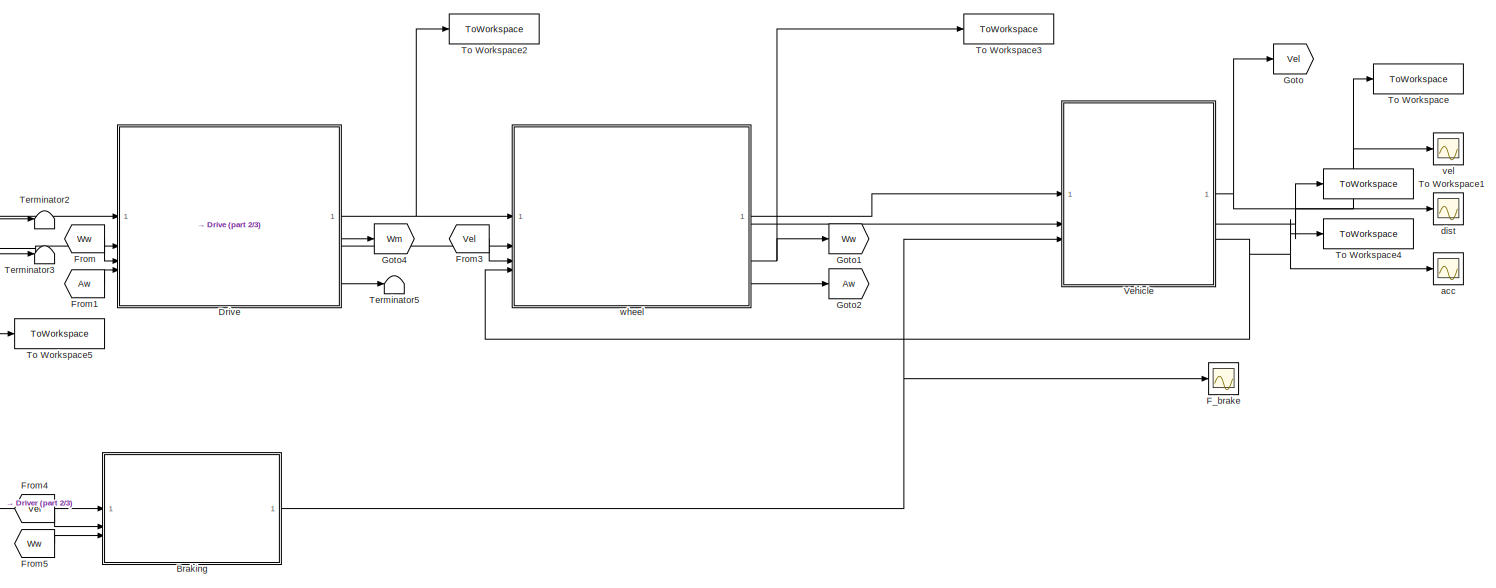
[diagram: root canvas - part 1/3, middle right region]
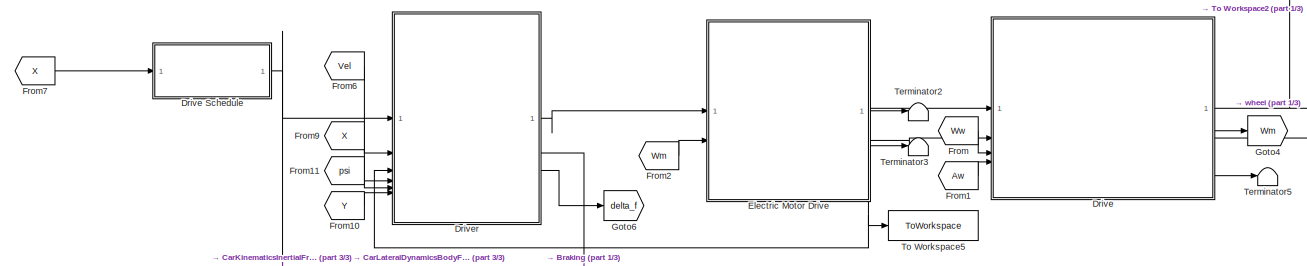
[diagram: root canvas - part 2/3, top left region]
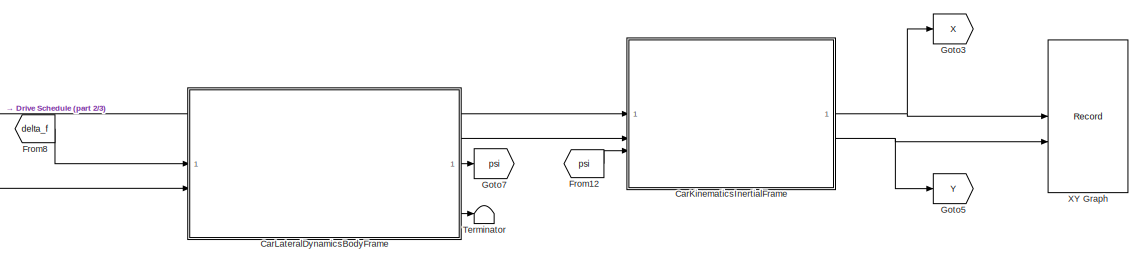
[diagram: root canvas - part 3/3, bottom center region]
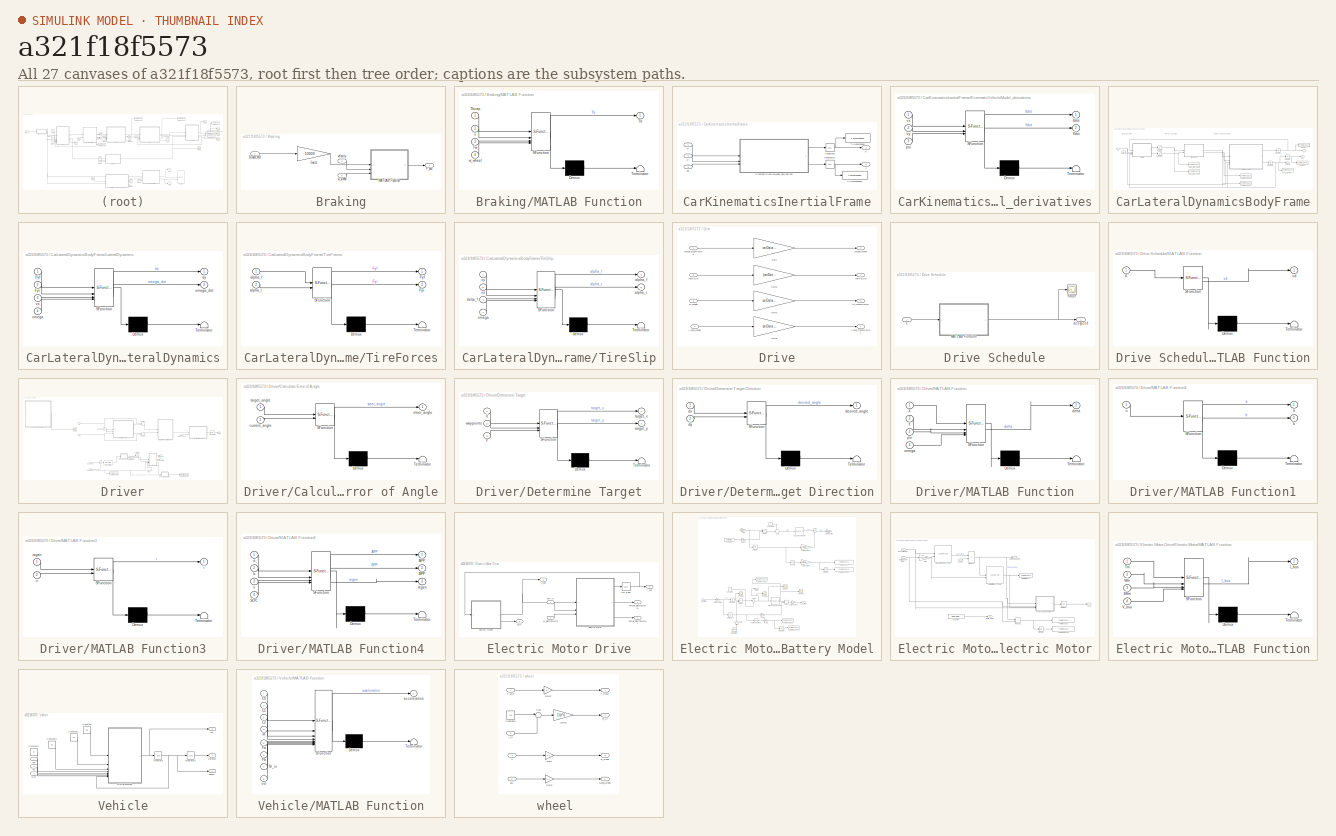
[diagram: thumbnail index - all 27 canvases of the model, root first then tree order]
MODEL slx_a321f18f5573
KIND model
CONFIG AbsTol = auto
CONFIG EnableMultiTasking = off
CONFIG FixedStep = auto
CONFIG MaxStep = auto
CONFIG MinStep = auto
CONFIG RelTol = 1e-3
CONFIG SampleTimeConstraint = Unconstrained
CONFIG SolverName = VariableStepAuto
CONFIG StartTime = 0.0
CONFIG StopTime = 10.0
BLOCK [SubSystem] Braking
BLOCK [Inport] Braking/BrakeCMD 
BLOCK [Outport] Braking/F_brk 
  VectorParamsAs1DForOutWhenUnconnected = off
BLOCK [Gain] Braking/Gain1
  Gain = 10000
BLOCK [SubSystem] Braking/MATLAB Function
  ErrorFcn = Stateflow.Translate.translate
  PermitHierarchicalResolution = ExplicitOnly
  SFBlockType = MATLAB Function
  TreatAsAtomicUnit = on
BLOCK [Demux] Braking/MATLAB Function/ Demux 
  Outputs = 1
BLOCK [S-Function] Braking/MATLAB Function/ SFunction 
  EnableBusSupport = on
  FunctionName = sf_sfun
  PortCounts = [4 2]
  SFcnIsStateOwnerBlock = off
  SFunctionDeploymentMode = off
  Tag = Stateflow S-Function 7
BLOCK [Terminator] Braking/MATLAB Function/ Terminator 
BLOCK [Outport] Braking/MATLAB Function/Tb
BLOCK [Inport] Braking/MATLAB Function/Tbcap
BLOCK [Inport] Braking/MATLAB Function/Tw
  Port = 3
BLOCK [Inport] Braking/MATLAB Function/v
  Port = 2
BLOCK [Inport] Braking/MATLAB Function/w_wheel
  Port = 4
BLOCK [Inport] Braking/velocity 
  Port = 2
BLOCK [Inport] Braking/w_wheel
  Port = 3
BLOCK [SubSystem] CarKinematicsInertialFrame
BLOCK [Integrator] CarKinematicsInertialFrame/Integrator
  InitialCondition = carData.init.X0
BLOCK [Integrator] CarKinematicsInertialFrame/Integrator1
  InitialCondition = carData.init.Y0
BLOCK [SubSystem] CarKinematicsInertialFrame/KinematicVehicleModel_derivatives
  ErrorFcn = Stateflow.Translate.translate
  PermitHierarchicalResolution = ExplicitOnly
  SFBlockType = MATLAB Function
  TreatAsAtomicUnit = on
BLOCK [Demux] CarKinematicsInertialFrame/KinematicVehicleModel_derivatives/ Demux 
  Outputs = 1
BLOCK [S-Function] CarKinematicsInertialFrame/KinematicVehicleModel_derivatives/ SFunction 
  EnableBusSupport = on
  FunctionName = sf_sfun
  PortCounts = [3 3]
  SFcnIsStateOwnerBlock = off
  SFunctionDeploymentMode = off
  Tag = Stateflow S-Function 3
BLOCK [Terminator] CarKinematicsInertialFrame/KinematicVehicleModel_derivatives/ Terminator 
BLOCK [Outport] CarKinematicsInertialFrame/KinematicVehicleModel_derivatives/Xdot
BLOCK [Outport] CarKinematicsInertialFrame/KinematicVehicleModel_derivatives/Ydot
  Port = 2
BLOCK [Inport] CarKinematicsInertialFrame/KinematicVehicleModel_derivatives/psi
  Port = 3
BLOCK [Inport] CarKinematicsInertialFrame/KinematicVehicleModel_derivatives/vx
BLOCK [Inport] CarKinematicsInertialFrame/KinematicVehicleModel_derivatives/vy
  Port = 2
BLOCK [ToWorkspace] CarKinematicsInertialFrame/To Workspace
  FixptAsFi = on
  MaxDataPoints = inf
  SampleTime = -1
  SaveFormat = Timeseries
  VariableName = X
BLOCK [ToWorkspace] CarKinematicsInertialFrame/To Workspace1
  FixptAsFi = on
  MaxDataPoints = inf
  SampleTime = -1
  SaveFormat = Timeseries
  VariableName = Y
BLOCK [Outport] CarKinematicsInertialFrame/X
BLOCK [Outport] CarKinematicsInertialFrame/Y
  Port = 2
BLOCK [Inport] CarKinematicsInertialFrame/psi
  Port = 3
BLOCK [Inport] CarKinematicsInertialFrame/vx
BLOCK [Inport] CarKinematicsInertialFrame/vy
  Port = 2
BLOCK [SubSystem] CarLateralDynamicsBodyFrame
BLOCK [ToWorkspace] CarLateralDynamicsBodyFrame/Front_Slip_Angle
  FixptAsFi = on
  MaxDataPoints = inf
  SampleTime = -1
  SaveFormat = Timeseries
  VariableName = alpha_f
BLOCK [ToWorkspace] CarLateralDynamicsBodyFrame/Heading
  FixptAsFi = on
  MaxDataPoints = inf
  SampleTime = -1
  SaveFormat = Timeseries
  VariableName = psi
BLOCK [Integrator] CarLateralDynamicsBodyFrame/Integrator
  InitialCondition = carData.init.vy0
BLOCK [Integrator] CarLateralDynamicsBodyFrame/Integrator1
  InitialCondition = carData.init.omega0
BLOCK [Integrator] CarLateralDynamicsBodyFrame/Integrator2
  InitialCondition = carData.init.psi0
BLOCK [SubSystem] CarLateralDynamicsBodyFrame/LateralDynamics
  ErrorFcn = Stateflow.Translate.translate
  PermitHierarchicalResolution = ExplicitOnly
  SFBlockType = MATLAB Function
  TreatAsAtomicUnit = on
BLOCK [Demux] CarLateralDynamicsBodyFrame/LateralDynamics/ Demux 
  Outputs = 1
BLOCK [S-Function] CarLateralDynamicsBodyFrame/LateralDynamics/ SFunction 
  EnableBusSupport = on
  FunctionName = sf_sfun
  Parameters = obj
  PortCounts = [4 3]
  SFcnIsStateOwnerBlock = off
  SFunctionDeploymentMode = off
  Tag = Stateflow S-Function 5
BLOCK [Terminator] CarLateralDynamicsBodyFrame/LateralDynamics/ Terminator 
BLOCK [Inport] CarLateralDynamicsBodyFrame/LateralDynamics/Fyf
BLOCK [Inport] CarLateralDynamicsBodyFrame/LateralDynamics/Fyr
  Port = 2
BLOCK [Outport] CarLateralDynamicsBodyFrame/LateralDynamics/ay
BLOCK [Inport] CarLateralDynamicsBodyFrame/LateralDynamics/omega
  Port = 4
BLOCK [Outport] CarLateralDynamicsBodyFrame/LateralDynamics/omega_dot
  Port = 2
BLOCK [Inport] CarLateralDynamicsBodyFrame/LateralDynamics/vx
  Port = 3
BLOCK [ToWorkspace] CarLateralDynamicsBodyFrame/Rear_Slip_Angle
  FixptAsFi = on
  MaxDataPoints = inf
  SampleTime = -1
  SaveFormat = Timeseries
  VariableName = alpha_r
BLOCK [Saturate] CarLateralDynamicsBodyFrame/Saturation
  LowerLimit = -carData.maxAlpha
  UpperLimit = carData.maxAlpha
BLOCK [Saturate] CarLateralDynamicsBodyFrame/Saturation1
  LowerLimit = -carData.maxAlpha
  UpperLimit = carData.maxAlpha
BLOCK [SubSystem] CarLateralDynamicsBodyFrame/TireForces
  ErrorFcn = Stateflow.Translate.translate
  PermitHierarchicalResolution = ExplicitOnly
  SFBlockType = MATLAB Function
  TreatAsAtomicUnit = on
BLOCK [Demux] CarLateralDynamicsBodyFrame/TireForces/ Demux 
  Outputs = 1
BLOCK [S-Function] CarLateralDynamicsBodyFrame/TireForces/ SFunction 
  EnableBusSupport = on
  FunctionName = sf_sfun
  Parameters = obj
  PortCounts = [2 3]
  SFcnIsStateOwnerBlock = off
  SFunctionDeploymentMode = off
  Tag = Stateflow S-Function 6
BLOCK [Terminator] CarLateralDynamicsBodyFrame/TireForces/ Terminator 
BLOCK [Outport] CarLateralDynamicsBodyFrame/TireForces/Fyf
BLOCK [Outport] CarLateralDynamicsBodyFrame/TireForces/Fyr
  Port = 2
BLOCK [Inport] CarLateralDynamicsBodyFrame/TireForces/alpha_f
BLOCK [Inport] CarLateralDynamicsBodyFrame/TireForces/alpha_r
  Port = 2
BLOCK [SubSystem] CarLateralDynamicsBodyFrame/TireSlip
  ErrorFcn = Stateflow.Translate.translate
  PermitHierarchicalResolution = ExplicitOnly
  SFBlockType = MATLAB Function
  TreatAsAtomicUnit = on
BLOCK [Demux] CarLateralDynamicsBodyFrame/TireSlip/ Demux 
  Outputs = 1
BLOCK [S-Function] CarLateralDynamicsBodyFrame/TireSlip/ SFunction 
  EnableBusSupport = on
  FunctionName = sf_sfun
  Parameters = obj
  PortCounts = [4 3]
  SFcnIsStateOwnerBlock = off
  SFunctionDeploymentMode = off
  Tag = Stateflow S-Function 8
BLOCK [Terminator] CarLateralDynamicsBodyFrame/TireSlip/ Terminator 
BLOCK [Outport] CarLateralDynamicsBodyFrame/TireSlip/alpha_f
BLOCK [Outport] CarLateralDynamicsBodyFrame/TireSlip/alpha_r
  Port = 2
BLOCK [Inport] CarLateralDynamicsBodyFrame/TireSlip/delta_f
  Port = 3
BLOCK [Inport] CarLateralDynamicsBodyFrame/TireSlip/omega
  Port = 4
BLOCK [Inport] CarLateralDynamicsBodyFrame/TireSlip/vx
  Port = 2
BLOCK [Inport] CarLateralDynamicsBodyFrame/TireSlip/vy
BLOCK [ToWorkspace] CarLateralDynamicsBodyFrame/To Workspace5
  FixptAsFi = on
  MaxDataPoints = inf
  SampleTime = -1
  SaveFormat = Timeseries
  VariableName = Fyf
BLOCK [ToWorkspace] CarLateralDynamicsBodyFrame/To Workspace6
  FixptAsFi = on
  MaxDataPoints = inf
  SampleTime = -1
  SaveFormat = Timeseries
  VariableName = Fyr
BLOCK [ToWorkspace] CarLateralDynamicsBodyFrame/Velocity_Y
  FixptAsFi = on
  MaxDataPoints = inf
  SampleTime = -1
  SaveFormat = Timeseries
  VariableName = vy
BLOCK [ToWorkspace] CarLateralDynamicsBodyFrame/Yaw Rate
  FixptAsFi = on
  MaxDataPoints = inf
  SampleTime = -1
  SaveFormat = Timeseries
  VariableName = omega
BLOCK [Inport] CarLateralDynamicsBodyFrame/delta_f
BLOCK [Outport] CarLateralDynamicsBodyFrame/omega
  Port = 3
BLOCK [Outport] CarLateralDynamicsBodyFrame/psi
  Port = 2
BLOCK [Inport] CarLateralDynamicsBodyFrame/vx
  Port = 2
BLOCK [Outport] CarLateralDynamicsBodyFrame/vy
BLOCK [SubSystem] Drive
BLOCK [SubSystem] Drive Schedule
BLOCK [SubSystem] Drive Schedule/MATLAB Function
  ErrorFcn = Stateflow.Translate.translate
  PermitHierarchicalResolution = ExplicitOnly
  SFBlockType = MATLAB Function
  TreatAsAtomicUnit = on
BLOCK [Demux] Drive Schedule/MATLAB Function/ Demux 
  Outputs = 1
BLOCK [S-Function] Drive Schedule/MATLAB Function/ SFunction 
  EnableBusSupport = on
  FunctionName = sf_sfun
  PortCounts = [1 2]
  SFcnIsStateOwnerBlock = off
  SFunctionDeploymentMode = off
  Tag = Stateflow S-Function 1
BLOCK [Terminator] Drive Schedule/MATLAB Function/ Terminator 
BLOCK [Inport] Drive Schedule/MATLAB Function/X
BLOCK [Outport] Drive Schedule/MATLAB Function/vd
BLOCK [Scope] Drive Schedule/Scope
  Floating = off
  NumInputPorts = 1
  ScopeSpecificationString = Simulink.scopes.TimeScopeBlockCfg('CurrentConfiguration', extmgr.ConfigurationSet(extmgr.Configuration('Core','General UI',true),extmgr.Configuration('Core','Source UI',true),extmgr.Configuration('Sources','WiredSimulink',true,'DataLoggingVariableName','ScopeData4'),extmgr.Configuration('Visuals','Time Domain',true,'SerializedDisplays',{struct('MinYLimReal','-3.1684','MaxYLimReal','28.51556','YLab...<+1407ch>
BLOCK [Outport] Drive Schedule/des speed 
  VectorParamsAs1DForOutWhenUnconnected = off
BLOCK [Inport] Drive Schedule/x
BLOCK [Outport] Drive/Alpha_Transmission
  Port = 4
BLOCK [Inport] Drive/Alpha_Wheel
  Port = 4
BLOCK [Gain] Drive/Gain
  Gain = carData.FDG
BLOCK [Gain] Drive/Gain1
  Gain = (carData.FDG)^2
BLOCK [Gain] Drive/Gain2
  Gain = carData.FDG
BLOCK [Gain] Drive/Gain3
  Gain = carData.FDG
BLOCK [Inport] Drive/Inertia_In
  Port = 2
BLOCK [Outport] Drive/Inertia_Out
  Port = 2
BLOCK [Inport] Drive/Torque_Tranmission
BLOCK [Outport] Drive/Torque_Wheel
BLOCK [Outport] Drive/W_Transmission
  Port = 3
BLOCK [Inport] Drive/W_Wheel
  Port = 3
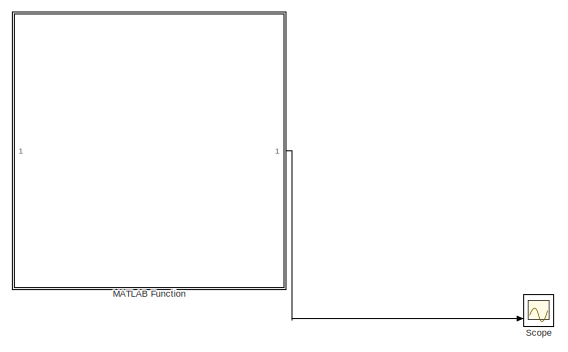
[diagram: Driver - part 1/2, top left region]
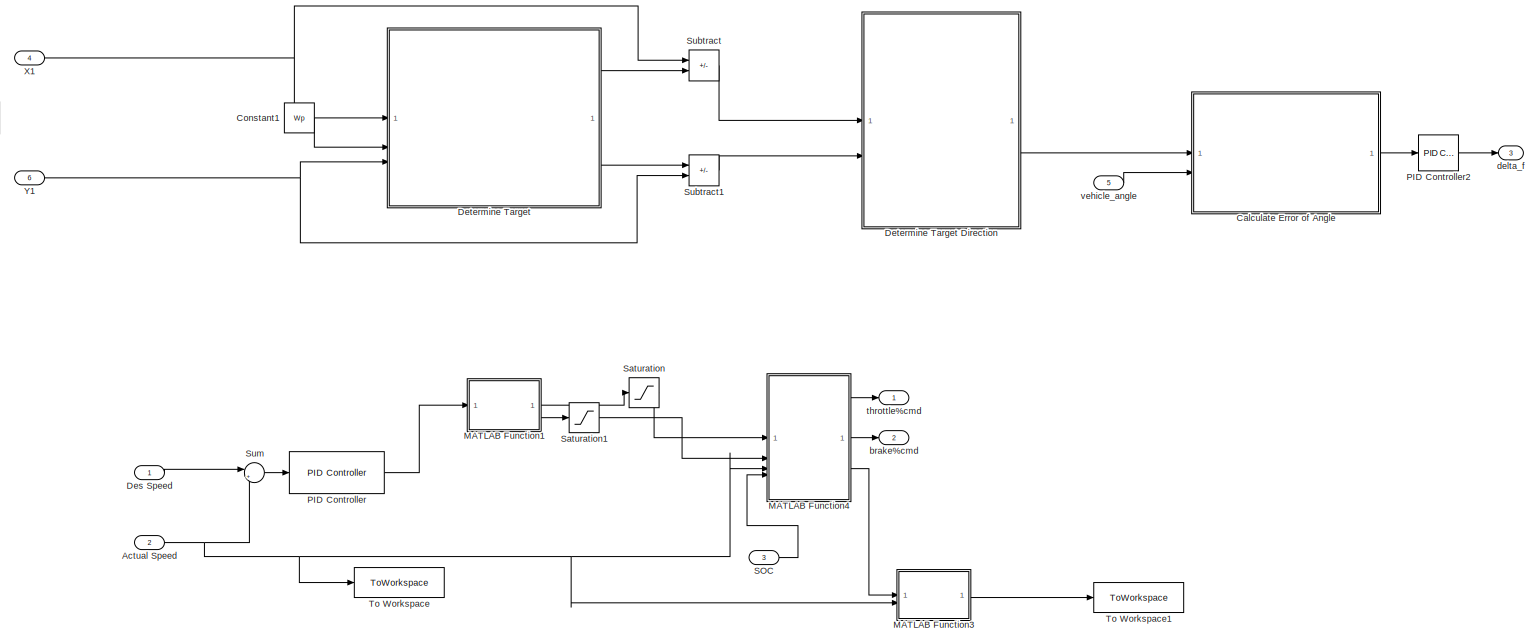
[diagram: Driver - part 2/2, most of the canvas]
BLOCK [SubSystem] Driver
BLOCK [Inport] Driver/Actual Speed
  Port = 2
BLOCK [SubSystem] Driver/Calculate Error of Angle
  ErrorFcn = Stateflow.Translate.translate
  PermitHierarchicalResolution = ExplicitOnly
  SFBlockType = MATLAB Function
  TreatAsAtomicUnit = on
BLOCK [Demux] Driver/Calculate Error of Angle/ Demux 
  Outputs = 1
BLOCK [S-Function] Driver/Calculate Error of Angle/ SFunction 
  EnableBusSupport = on
  FunctionName = sf_sfun
  PortCounts = [2 2]
  SFcnIsStateOwnerBlock = off
  SFunctionDeploymentMode = off
  Tag = Stateflow S-Function 12
BLOCK [Terminator] Driver/Calculate Error of Angle/ Terminator 
BLOCK [Inport] Driver/Calculate Error of Angle/current_angle
  Port = 2
BLOCK [Outport] Driver/Calculate Error of Angle/steer_angle
BLOCK [Inport] Driver/Calculate Error of Angle/target_angle
BLOCK [Constant] Driver/Constant1
  Value = Wp
BLOCK [Inport] Driver/Des Speed 
BLOCK [SubSystem] Driver/Determine Target
  ErrorFcn = Stateflow.Translate.translate
  PermitHierarchicalResolution = ExplicitOnly
  SFBlockType = MATLAB Function
  TreatAsAtomicUnit = on
BLOCK [SubSystem] Driver/Determine Target Direction
  ErrorFcn = Stateflow.Translate.translate
  PermitHierarchicalResolution = ExplicitOnly
  SFBlockType = MATLAB Function
  TreatAsAtomicUnit = on
BLOCK [Demux] Driver/Determine Target Direction/ Demux 
  Outputs = 1
BLOCK [S-Function] Driver/Determine Target Direction/ SFunction 
  EnableBusSupport = on
  FunctionName = sf_sfun
  PortCounts = [2 2]
  SFcnIsStateOwnerBlock = off
  SFunctionDeploymentMode = off
  Tag = Stateflow S-Function 20
BLOCK [Terminator] Driver/Determine Target Direction/ Terminator 
BLOCK [Outport] Driver/Determine Target Direction/desired_angle
BLOCK [Inport] Driver/Determine Target Direction/dx
BLOCK [Inport] Driver/Determine Target Direction/dy
  Port = 2
BLOCK [Demux] Driver/Determine Target/ Demux 
  Outputs = 1
BLOCK [S-Function] Driver/Determine Target/ SFunction 
  EnableBusSupport = on
  FunctionName = sf_sfun
  PortCounts = [3 3]
  SFcnIsStateOwnerBlock = off
  SFunctionDeploymentMode = off
  Tag = Stateflow S-Function 19
BLOCK [Terminator] Driver/Determine Target/ Terminator 
BLOCK [Inport] Driver/Determine Target/X
BLOCK [Inport] Driver/Determine Target/Y
  Port = 3
BLOCK [Outport] Driver/Determine Target/target_x
BLOCK [Outport] Driver/Determine Target/target_y
  Port = 2
BLOCK [Inport] Driver/Determine Target/waypoints
  Port = 2
BLOCK [SubSystem] Driver/MATLAB Function
  Commented = on
  ErrorFcn = Stateflow.Translate.translate
  PermitHierarchicalResolution = ExplicitOnly
  SFBlockType = MATLAB Function
  TreatAsAtomicUnit = on
BLOCK [Demux] Driver/MATLAB Function/ Demux 
  Outputs = 1
BLOCK [S-Function] Driver/MATLAB Function/ SFunction 
  EnableBusSupport = on
  FunctionName = sf_sfun
  PortCounts = [4 2]
  SFcnIsStateOwnerBlock = off
  SFunctionDeploymentMode = off
  Tag = Stateflow S-Function 10
BLOCK [Terminator] Driver/MATLAB Function/ Terminator 
BLOCK [Inport] Driver/MATLAB Function/X
BLOCK [Inport] Driver/MATLAB Function/Y
  Port = 2
BLOCK [Outport] Driver/MATLAB Function/delta
BLOCK [Inport] Driver/MATLAB Function/omega
  Port = 4
BLOCK [Inport] Driver/MATLAB Function/psi
  Port = 3
BLOCK [SubSystem] Driver/MATLAB Function1
  ErrorFcn = Stateflow.Translate.translate
  PermitHierarchicalResolution = ExplicitOnly
  SFBlockType = MATLAB Function
  TreatAsAtomicUnit = on
BLOCK [Demux] Driver/MATLAB Function1/ Demux 
  Outputs = 1
BLOCK [S-Function] Driver/MATLAB Function1/ SFunction 
  EnableBusSupport = on
  FunctionName = sf_sfun
  PortCounts = [1 3]
  SFcnIsStateOwnerBlock = off
  SFunctionDeploymentMode = off
  Tag = Stateflow S-Function 11
BLOCK [Terminator] Driver/MATLAB Function1/ Terminator 
BLOCK [Outport] Driver/MATLAB Function1/a
BLOCK [Outport] Driver/MATLAB Function1/b
  Port = 2
BLOCK [Inport] Driver/MATLAB Function1/u
BLOCK [SubSystem] Driver/MATLAB Function3
  ErrorFcn = Stateflow.Translate.translate
  PermitHierarchicalResolution = ExplicitOnly
  SFBlockType = MATLAB Function
  TreatAsAtomicUnit = on
BLOCK [Demux] Driver/MATLAB Function3/ Demux 
  Outputs = 1
BLOCK [S-Function] Driver/MATLAB Function3/ SFunction 
  EnableBusSupport = on
  FunctionName = sf_sfun
  PortCounts = [2 2]
  SFcnIsStateOwnerBlock = off
  SFunctionDeploymentMode = off
  Tag = Stateflow S-Function 13
BLOCK [Terminator] Driver/MATLAB Function3/ Terminator 
BLOCK [Outport] Driver/MATLAB Function3/i
BLOCK [Inport] Driver/MATLAB Function3/regen
BLOCK [Inport] Driver/MATLAB Function3/v
  Port = 2
BLOCK [SubSystem] Driver/MATLAB Function4
  ErrorFcn = Stateflow.Translate.translate
  PermitHierarchicalResolution = ExplicitOnly
  SFBlockType = MATLAB Function
  TreatAsAtomicUnit = on
BLOCK [Demux] Driver/MATLAB Function4/ Demux 
  Outputs = 1
BLOCK [S-Function] Driver/MATLAB Function4/ SFunction 
  EnableBusSupport = on
  FunctionName = sf_sfun
  PortCounts = [4 4]
  SFcnIsStateOwnerBlock = off
  SFunctionDeploymentMode = off
  Tag = Stateflow S-Function 14
BLOCK [Terminator] Driver/MATLAB Function4/ Terminator 
BLOCK [Outport] Driver/MATLAB Function4/APP
BLOCK [Outport] Driver/MATLAB Function4/BPP
  Port = 2
BLOCK [Inport] Driver/MATLAB Function4/SOC
  Port = 4
BLOCK [Inport] Driver/MATLAB Function4/a
BLOCK [Inport] Driver/MATLAB Function4/b
  Port = 2
BLOCK [Outport] Driver/MATLAB Function4/regen
  Port = 3
BLOCK [Inport] Driver/MATLAB Function4/v
  Port = 3
BLOCK [Reference] Driver/PID Controller  REF=slpidlib/PID Controller
  SourceBlock = slpidlib/PID Controller
  SourceType = PID 1dof
BLOCK [Reference] Driver/PID Controller2  REF=slpidlib/PID Controller
  LibrarySourceBlock = simulink/Continuous/PID Controller
  SourceBlock = slpidlib/PID Controller
  SourceType = PID 1dof
BLOCK [Inport] Driver/SOC
  Port = 3
BLOCK [Saturate] Driver/Saturation
  LowerLimit = 0
  UpperLimit = 1
BLOCK [Saturate] Driver/Saturation1
  LowerLimit = -1
  UpperLimit = 0
BLOCK [Scope] Driver/Scope
  Commented = on
  Floating = off
  NumInputPorts = 3
  ScopeSpecificationString = Simulink.scopes.TimeScopeBlockCfg('CurrentConfiguration', extmgr.ConfigurationSet(extmgr.Configuration('Core','General UI',true),extmgr.Configuration('Core','Source UI',true),extmgr.Configuration('Sources','WiredSimulink',true),extmgr.Configuration('Visuals','Time Domain',true,'SerializedDisplays',{struct('MinYLimReal','-239.44458','MaxYLimReal','1139.16885','YLabelReal','','MinYLimMag',' 0.00000'...<+2726ch>
BLOCK [Sum] Driver/Subtract
  IconShape = rectangular
  Inputs = -+
BLOCK [Sum] Driver/Subtract1
  IconShape = rectangular
  Inputs = +-
BLOCK [Sum] Driver/Sum
  Inputs = |+-
BLOCK [ToWorkspace] Driver/To Workspace
  FixptAsFi = on
  MaxDataPoints = inf
  SampleTime = -1
  SaveFormat = Timeseries
  VariableName = veh_speed
BLOCK [ToWorkspace] Driver/To Workspace1
  FixptAsFi = on
  MaxDataPoints = inf
  SampleTime = -1
  SaveFormat = Timeseries
  VariableName = brake
BLOCK [Inport] Driver/X1
  Port = 4
BLOCK [Inport] Driver/Y1
  Port = 6
BLOCK [Outport] Driver/brake%cmd 
  Port = 2
BLOCK [Outport] Driver/delta_f
  Port = 3
BLOCK [Outport] Driver/throttle%cmd
BLOCK [Inport] Driver/vehicle_angle
  Port = 5
BLOCK [SubSystem] Electric Motor Drive
BLOCK [Inport] Electric Motor Drive/APP (%)
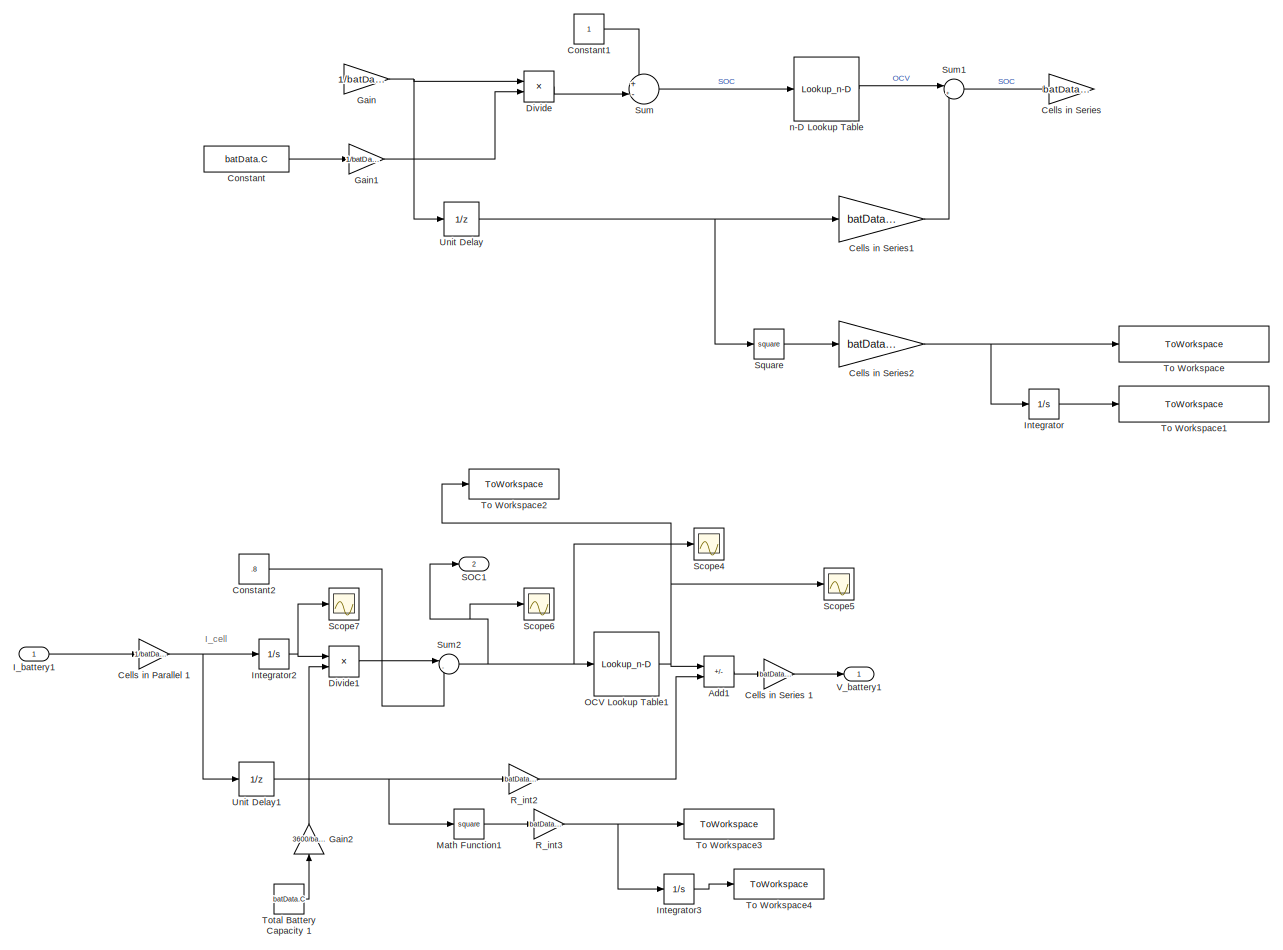
[diagram: Electric Motor Drive/Battery Model - part 1/1, most of the canvas]
BLOCK [SubSystem] Electric Motor Drive/Battery Model
  TreatAsAtomicUnit = on
BLOCK [Sum] Electric Motor Drive/Battery Model/Add1
  IconShape = rectangular
  Inputs = +-
BLOCK [Gain] Electric Motor Drive/Battery Model/Cells in Parallel 1
  Gain = 1/batData.numParallel
BLOCK [Gain] Electric Motor Drive/Battery Model/Cells in Series
  Commented = on
  Gain = batData.numSeries
BLOCK [Gain] Electric Motor Drive/Battery Model/Cells in Series 1
  Gain = batData.numSeries
BLOCK [Gain] Electric Motor Drive/Battery Model/Cells in Series1
  Commented = on
  Gain = batData.Rint
BLOCK [Gain] Electric Motor Drive/Battery Model/Cells in Series2
  Commented = on
  Gain = batData.Rint
BLOCK [Constant] Electric Motor Drive/Battery Model/Constant
  Commented = on
  Value = batData.C
BLOCK [Constant] Electric Motor Drive/Battery Model/Constant1
  Commented = on
BLOCK [Constant] Electric Motor Drive/Battery Model/Constant2
  Value = .8
BLOCK [Product] Electric Motor Drive/Battery Model/Divide
  Commented = on
  Inputs = */
BLOCK [Product] Electric Motor Drive/Battery Model/Divide1
  Inputs = */
BLOCK [Gain] Electric Motor Drive/Battery Model/Gain
  Commented = on
  Gain = 1/batData.numParallel
BLOCK [Gain] Electric Motor Drive/Battery Model/Gain1
  Commented = on
  Gain = 1/batData.numParallel
BLOCK [Gain] Electric Motor Drive/Battery Model/Gain2
  Gain = 3600/batData.numParallel
  NameLocation = right
BLOCK [Inport] Electric Motor Drive/Battery Model/I_battery1
BLOCK [Integrator] Electric Motor Drive/Battery Model/Integrator
  Commented = on
BLOCK [Integrator] Electric Motor Drive/Battery Model/Integrator2
BLOCK [Integrator] Electric Motor Drive/Battery Model/Integrator3
BLOCK [Math] Electric Motor Drive/Battery Model/Math Function1
  Operator = square
BLOCK [Lookup_n-D] Electric Motor Drive/Battery Model/OCV Lookup Table1
  BreakpointsForDimension1 = batData.SOC
  BreakpointsForDimension1Spacing = 12
  BreakpointsForDimension2FirstPoint = 10
  BreakpointsForDimension2Spacing = 12
  ExtrapMethod = Cubic spline
  InputPortMap = u0
  InternalRulePriority = Speed
  InterpMethod = Flat
  LookupTableObject = ''
  NumberOfTableDimensions = 1
  RemoveProtectionInput = on
  RndMeth = Simplest
  Table = batData.OCV
BLOCK [Gain] Electric Motor Drive/Battery Model/R_int2
  Gain = batData.Rint
BLOCK [Gain] Electric Motor Drive/Battery Model/R_int3
  Gain = batData.Rint
BLOCK [Outport] Electric Motor Drive/Battery Model/SOC1
  Port = 2
BLOCK [Scope] Electric Motor Drive/Battery Model/Scope4
  Floating = off
  NumInputPorts = 1
  ScopeSpecificationString = Simulink.scopes.TimeScopeBlockCfg('CurrentConfiguration', extmgr.ConfigurationSet(extmgr.Configuration('Core','General UI',true),extmgr.Configuration('Core','Source UI',true),extmgr.Configuration('Sources','WiredSimulink',true,'DataLoggingVariableName','ScopeData1'),extmgr.Configuration('Visuals','Time Domain',true,'SerializedDisplays',{struct('MinYLimReal','-1834.12914','MaxYLimReal','204.93516',...<+1415ch>
BLOCK [Scope] Electric Motor Drive/Battery Model/Scope5
  Floating = off
  NumInputPorts = 1
  ScopeSpecificationString = Simulink.scopes.TimeScopeBlockCfg('CurrentConfiguration', extmgr.ConfigurationSet(extmgr.Configuration('Core','General UI',true),extmgr.Configuration('Core','Source UI',true),extmgr.Configuration('Sources','WiredSimulink',true,'DataLoggingVariableName','ScopeData2'),extmgr.Configuration('Visuals','Time Domain',true,'SerializedDisplays',{struct('MinYLimReal','-0.51875','MaxYLimReal','4.66875','YLab...<+1411ch>
BLOCK [Scope] Electric Motor Drive/Battery Model/Scope6
  Floating = off
  NumInputPorts = 1
  ScopeSpecificationString = Simulink.scopes.TimeScopeBlockCfg('CurrentConfiguration', extmgr.ConfigurationSet(extmgr.Configuration('Core','General UI',true),extmgr.Configuration('Core','Source UI',true),extmgr.Configuration('Sources','WiredSimulink',true,'DataLoggingVariableName','ScopeData3'),extmgr.Configuration('Visuals','Time Domain',true,'SerializedDisplays',{struct('MinYLimReal','0.9','MaxYLimReal','1.1','YLabelReal','...<+1329ch>
BLOCK [Scope] Electric Motor Drive/Battery Model/Scope7
  Floating = off
  NumInputPorts = 1
  ScopeSpecificationString = Simulink.scopes.TimeScopeBlockCfg('CurrentConfiguration', extmgr.ConfigurationSet(extmgr.Configuration('Core','General UI',true),extmgr.Configuration('Core','Source UI',true),extmgr.Configuration('Sources','WiredSimulink',true,'DataLoggingVariableName','ScopeData4'),extmgr.Configuration('Visuals','Time Domain',true,'SerializedDisplays',{struct('MinYLimReal','-1.00000','MaxYLimReal','1.00000','YLab...<+1370ch>
BLOCK [Math] Electric Motor Drive/Battery Model/Square
  Commented = on
  Operator = square
BLOCK [Sum] Electric Motor Drive/Battery Model/Sum
  Commented = on
  Inputs = +-|
BLOCK [Sum] Electric Motor Drive/Battery Model/Sum1
  Commented = on
  Inputs = |+-
BLOCK [Sum] Electric Motor Drive/Battery Model/Sum2
  Inputs = |-+
  NameLocation = top
BLOCK [ToWorkspace] Electric Motor Drive/Battery Model/To Workspace
  Commented = on
  FixptAsFi = on
  MaxDataPoints = inf
  SampleTime = -1
  SaveFormat = Timeseries
  VariableName = BatteryPowerLosses
BLOCK [ToWorkspace] Electric Motor Drive/Battery Model/To Workspace1
  Commented = on
  FixptAsFi = on
  MaxDataPoints = inf
  SampleTime = -1
  SaveFormat = Timeseries
  VariableName = BatteryEnergyLosses
BLOCK [ToWorkspace] Electric Motor Drive/Battery Model/To Workspace2
  FixptAsFi = on
  MaxDataPoints = inf
  SampleTime = -1
  SaveFormat = Timeseries
  VariableName = OCV
BLOCK [ToWorkspace] Electric Motor Drive/Battery Model/To Workspace3
  FixptAsFi = on
  MaxDataPoints = inf
  SampleTime = -1
  SaveFormat = Timeseries
  VariableName = BatteryPowerLosses1
BLOCK [ToWorkspace] Electric Motor Drive/Battery Model/To Workspace4
  FixptAsFi = on
  MaxDataPoints = inf
  SampleTime = -1
  SaveFormat = Timeseries
  VariableName = BatteryEnergyLosses1
BLOCK [Constant] Electric Motor Drive/Battery Model/Total Battery Capacity 1
  Value = batData.C
BLOCK [UnitDelay] Electric Motor Drive/Battery Model/Unit Delay
  Commented = on
  HasFrameUpgradeWarning = on
  SampleTime = -1
BLOCK [UnitDelay] Electric Motor Drive/Battery Model/Unit Delay1
  HasFrameUpgradeWarning = on
  SampleTime = -1
BLOCK [Outport] Electric Motor Drive/Battery Model/V_battery1
BLOCK [Lookup_n-D] Electric Motor Drive/Battery Model/n-D Lookup Table
  BreakpointsForDimension1 = batData.SOC
  BreakpointsForDimension3 = [5, 7]
  Commented = on
  InputPortMap = u0
  InternalRulePriority = Speed
  NumberOfTableDimensions = 1
  RndMeth = Simplest
  Table = batData.OCV
BLOCK [SubSystem] Electric Motor Drive/Electric Motor
  TreatAsAtomicUnit = on
BLOCK [Inport] Electric Motor Drive/Electric Motor/APP (%)
  Port = 2
BLOCK [Inport] Electric Motor Drive/Electric Motor/Bus Voltage (V)
BLOCK [Constant] Electric Motor Drive/Electric Motor/Constant
  Value = motorData.Inertia
BLOCK [Gain] Electric Motor Drive/Electric Motor/Gain
  Gain = rps2rpm
BLOCK [Outport] Electric Motor Drive/Electric Motor/I_bus
BLOCK [Outport] Electric Motor Drive/Electric Motor/Inertia_Motor
  Port = 3
BLOCK [Integrator] Electric Motor Drive/Electric Motor/Integrator
BLOCK [SubSystem] Electric Motor Drive/Electric Motor/MATLAB Function
  ErrorFcn = Stateflow.Translate.translate
  PermitHierarchicalResolution = ExplicitOnly
  SFBlockType = MATLAB Function
  TreatAsAtomicUnit = on
BLOCK [Demux] Electric Motor Drive/Electric Motor/MATLAB Function/ Demux 
  Outputs = 1
BLOCK [S-Function] Electric Motor Drive/Electric Motor/MATLAB Function/ SFunction 
  EnableBusSupport = on
  FunctionName = sf_sfun
  PortCounts = [4 2]
  SFcnIsStateOwnerBlock = off
  SFunctionDeploymentMode = off
  Tag = Stateflow S-Function 4
BLOCK [Terminator] Electric Motor Drive/Electric Motor/MATLAB Function/ Terminator 
BLOCK [Inport] Electric Motor Drive/Electric Motor/MATLAB Function/Effm
  Port = 3
BLOCK [Outport] Electric Motor Drive/Electric Motor/MATLAB Function/I_bus
BLOCK [Inport] Electric Motor Drive/Electric Motor/MATLAB Function/Tm
BLOCK [Inport] Electric Motor Drive/Electric Motor/MATLAB Function/V_bus
  Port = 4
BLOCK [Inport] Electric Motor Drive/Electric Motor/MATLAB Function/Wm
  Port = 2
BLOCK [Lookup_n-D] Electric Motor Drive/Electric Motor/Max Motor Torque Table
  BreakpointsForDimension1 = motorData.vbus
  BreakpointsForDimension2 = motorData.rpm
  BreakpointsForDimension3 = [5, 7]
  InputPortMap = u0,u1
  InternalRulePriority = Speed
  RndMeth = Simplest
  Table = motorData.maxtorque
BLOCK [ToWorkspace] Electric Motor Drive/Electric Motor/Motor Efficiency
  FixptAsFi = on
  MaxDataPoints = inf
  SampleTime = -1
  SaveFormat = Timeseries
  VariableName = efficiency_motor1
BLOCK [Lookup_n-D] Electric Motor Drive/Electric Motor/Motor Efficiency Table
  BreakpointsForDimension1 = motorData.eta_torque
  BreakpointsForDimension2 = motorData.eta_speed
  BreakpointsForDimension3 = [5, 7]
  InputPortMap = u0,u1
  InternalRulePriority = Speed
  RndMeth = Simplest
  Table = motorData.eta_val
BLOCK [Inport] Electric Motor Drive/Electric Motor/Motor Speed (rad//s)
  Port = 3
BLOCK [Outport] Electric Motor Drive/Electric Motor/Motor Torque (Nm)
  Port = 2
BLOCK [Product] Electric Motor Drive/Electric Motor/Product
BLOCK [Product] Electric Motor Drive/Electric Motor/Product1
BLOCK [ToWorkspace] Electric Motor Drive/Electric Motor/To Workspace
  FixptAsFi = on
  MaxDataPoints = inf
  SampleTime = -1
  SaveFormat = Timeseries
  VariableName = MotorPower
BLOCK [ToWorkspace] Electric Motor Drive/Electric Motor/To Workspace1
  FixptAsFi = on
  MaxDataPoints = inf
  SampleTime = -1
  SaveFormat = Timeseries
  VariableName = MotorEnergy
BLOCK [UnitDelay] Electric Motor Drive/Electric Motor/Unit Delay
  HasFrameUpgradeWarning = on
  SampleTime = -1
BLOCK [Outport] Electric Motor Drive/I_bat
  Port = 4
BLOCK [Outport] Electric Motor Drive/Inertia_ElectricMotor
  Port = 2
BLOCK [Outport] Electric Motor Drive/SOC
  Port = 5
BLOCK [Outport] Electric Motor Drive/Torque_ElectricMotor
  NameLocation = top
BLOCK [UnitDelay] Electric Motor Drive/Unit Delay
  HasFrameUpgradeWarning = on
  SampleTime = -1
BLOCK [Outport] Electric Motor Drive/V_bat
  Port = 3
BLOCK [Inport] Electric Motor Drive/W_ElectricMotor
  Port = 2
BLOCK [Scope] F_brake
  Floating = off
  NumInputPorts = 1
  ScopeSpecificationString = Simulink.scopes.TimeScopeBlockCfg('CurrentConfiguration', extmgr.ConfigurationSet(extmgr.Configuration('Core','General UI',true),extmgr.Configuration('Core','Source UI',true),extmgr.Configuration('Sources','WiredSimulink',true,'DataLoggingVariableName','ScopeData1'),extmgr.Configuration('Visuals','Time Domain',true,'SerializedDisplays',{struct('MinYLimReal','-450.00000','MaxYLimReal','4050.00000',...<+1384ch>
BLOCK [From] From
  GotoTag = Ww
BLOCK [From] From1
  GotoTag = Aw
BLOCK [From] From10
  GotoTag = Y
BLOCK [From] From11
  GotoTag = psi
BLOCK [From] From12
  GotoTag = psi
BLOCK [From] From2
  GotoTag = Wm
BLOCK [From] From3
  GotoTag = Vel
BLOCK [From] From4
  GotoTag = Vel
BLOCK [From] From5
  GotoTag = Ww
BLOCK [From] From6
  GotoTag = Vel
BLOCK [From] From7
  GotoTag = X
BLOCK [From] From8
  GotoTag = delta_f
BLOCK [From] From9
  GotoTag = X
BLOCK [Goto] Goto
  GotoTag = Vel
BLOCK [Goto] Goto1
  GotoTag = Ww
BLOCK [Goto] Goto2
  GotoTag = Aw
BLOCK [Goto] Goto3
  GotoTag = X
BLOCK [Goto] Goto4
  GotoTag = Wm
BLOCK [Goto] Goto5
  GotoTag = Y
BLOCK [Goto] Goto6
  GotoTag = delta_f
BLOCK [Goto] Goto7
  GotoTag = psi
BLOCK [Terminator] Terminator
BLOCK [Terminator] Terminator2
BLOCK [Terminator] Terminator3
BLOCK [Terminator] Terminator5
BLOCK [ToWorkspace] To Workspace
  FixptAsFi = on
  MaxDataPoints = inf
  SampleTime = -1
  SaveFormat = Timeseries
  VariableName = vel
BLOCK [ToWorkspace] To Workspace1
  FixptAsFi = on
  MaxDataPoints = inf
  SampleTime = -1
  SaveFormat = Timeseries
  VariableName = dist
BLOCK [ToWorkspace] To Workspace2
  FixptAsFi = on
  MaxDataPoints = inf
  SampleTime = -1
  SaveFormat = Timeseries
  VariableName = torque
BLOCK [ToWorkspace] To Workspace3
  FixptAsFi = on
  MaxDataPoints = inf
  SampleTime = -1
  SaveFormat = Timeseries
  VariableName = AV
BLOCK [ToWorkspace] To Workspace4
  FixptAsFi = on
  MaxDataPoints = inf
  SampleTime = -1
  SaveFormat = Timeseries
  VariableName = acc
BLOCK [ToWorkspace] To Workspace5
  FixptAsFi = on
  MaxDataPoints = inf
  SampleTime = -1
  SaveFormat = Timeseries
  VariableName = SOC
BLOCK [SubSystem] Vehicle
BLOCK [Constant] Vehicle/Constant
  Value = C0
BLOCK [Constant] Vehicle/Constant1
  Value = C1
BLOCK [Constant] Vehicle/Constant2
  Value = C2
BLOCK [Constant] Vehicle/Constant3
  Value = M
BLOCK [Outport] Vehicle/Distance 
  Port = 2
  VectorParamsAs1DForOutWhenUnconnected = off
BLOCK [Inport] Vehicle/Fb 
  Port = 3
BLOCK [Inport] Vehicle/Fw 
BLOCK [Integrator] Vehicle/Integrator
  LimitOutput = on
  LowerSaturationLimit = 0
BLOCK [Integrator] Vehicle/Integrator1
BLOCK [SubSystem] Vehicle/MATLAB Function
  ErrorFcn = Stateflow.Translate.translate
  PermitHierarchicalResolution = ExplicitOnly
  SFBlockType = MATLAB Function
  TreatAsAtomicUnit = on
BLOCK [Demux] Vehicle/MATLAB Function/ Demux 
  Outputs = 1
BLOCK [S-Function] Vehicle/MATLAB Function/ SFunction 
  EnableBusSupport = on
  FunctionName = sf_sfun
  PortCounts = [8 2]
  SFcnIsStateOwnerBlock = off
  SFunctionDeploymentMode = off
  Tag = Stateflow S-Function 2
BLOCK [Terminator] Vehicle/MATLAB Function/ Terminator 
BLOCK [Inport] Vehicle/MATLAB Function/C0
BLOCK [Inport] Vehicle/MATLAB Function/C1
  Port = 2
BLOCK [Inport] Vehicle/MATLAB Function/C2
  Port = 3
BLOCK [Inport] Vehicle/MATLAB Function/Fa
  Port = 5
BLOCK [Inport] Vehicle/MATLAB Function/Fb
  Port = 6
BLOCK [Inport] Vehicle/MATLAB Function/M
  Port = 4
BLOCK [Inport] Vehicle/MATLAB Function/M_in
  Port = 7
BLOCK [Outport] Vehicle/MATLAB Function/acceleration
  VectorParamsAs1DForOutWhenUnconnected = off
BLOCK [Inport] Vehicle/MATLAB Function/vel
  Port = 8
BLOCK [Inport] Vehicle/M_in 
  Port = 2
BLOCK [Outport] Vehicle/acc
  Port = 3
BLOCK [Outport] Vehicle/velocity 
  VectorParamsAs1DForOutWhenUnconnected = off
BLOCK [Record] XY Graph
  CompatibilityTag = XY
  FileSettingsInternal = {"entries":[{"content":{"excelSettings":{"content":{},"type":"Streamout.ExcelSettings"}},"type":"Streamout.FileSettingStorage","uuid":""}],"packageUris":["http:\/\/schema.mathworks.com\/mf0\/streamout_blocks\/R2020a"],"version":"1.0"}
  Layout = [1 1]
  SignalsInternal = {"entries":[{"content":{"signals":[{"content":{"blockPath":[],"dimensions":[1],"domain":"","lineColor":"#7e2f8e","port":1,"sid":[""],"signalID":5613,"signalName":"CarKinematicsInertialFrame:1"},"type":"RecordBlkView.Signal","uuid":""},{"content":{"blockPath":[],"dimensions":[1],"domain":"","lineColor":"#77ac30","port":2,"sid":[""],"signalID":5617,"signalName":"CarKinematicsInertialFrame:2"},"type"...<+180ch>
  VisualizationBindings = {"xyplotplugin":{"info":[{"series":[],"subplotID":1}]}}
  st = -1
BLOCK [Scope] acc
  Floating = off
  NumInputPorts = 1
  ScopeSpecificationString = Simulink.scopes.TimeScopeBlockCfg('CurrentConfiguration', extmgr.ConfigurationSet(extmgr.Configuration('Core','General UI',true),extmgr.Configuration('Core','Source UI',true),extmgr.Configuration('Sources','WiredSimulink',true,'DataLoggingVariableName','ScopeData2'),extmgr.Configuration('Visuals','Time Domain',true,'SerializedDisplays',{struct('MinYLimReal','-0.00394','MaxYLimReal','0.01003','YLab...<+1379ch>
BLOCK [Scope] dist
  Floating = off
  NumInputPorts = 1
  ScopeSpecificationString = Simulink.scopes.TimeScopeBlockCfg('CurrentConfiguration', extmgr.ConfigurationSet(extmgr.Configuration('Core','General UI',true),extmgr.Configuration('Core','Source UI',true),extmgr.Configuration('Sources','WiredSimulink',true,'DataLoggingVariableName','ScopeData3'),extmgr.Configuration('Visuals','Time Domain',true,'SerializedDisplays',{struct('MinYLimReal','-0.02973','MaxYLimReal','0.26756','YLab...<+1368ch>
BLOCK [Scope] vel
  Floating = off
  NumInputPorts = 1
  ScopeSpecificationString = Simulink.scopes.TimeScopeBlockCfg('CurrentConfiguration', extmgr.ConfigurationSet(extmgr.Configuration('Core','General UI',true),extmgr.Configuration('Core','Source UI',true),extmgr.Configuration('Sources','WiredSimulink',true,'DataLoggingVariableName','ScopeData5'),extmgr.Configuration('Visuals','Time Domain',true,'SerializedDisplays',{struct('MinYLimReal','-0.00004','MaxYLimReal','0.00035','YLab...<+1404ch>
BLOCK [SubSystem] wheel 
BLOCK [Constant] wheel /Constant6
  Value = Iw
BLOCK [Outport] wheel /F_track
BLOCK [Gain] wheel /Gain
  Gain = 1/r
BLOCK [Gain] wheel /Gain1
  Gain = 1/r
BLOCK [Gain] wheel /Gain2
  Gain = 1/r
BLOCK [Gain] wheel /Gain3
  Gain = 1/(r*r)
BLOCK [Inport] wheel /I_in
  Port = 2
BLOCK [Outport] wheel /M_in
  Port = 2
BLOCK [Sum] wheel /Sum
  Inputs = |++
BLOCK [Inport] wheel /T_axle
BLOCK [Inport] wheel /V
  Port = 3
BLOCK [Inport] wheel /acc
  Port = 4
BLOCK [Outport] wheel /alpha_wheel
  Port = 4
BLOCK [Outport] wheel /w_wheel
  Port = 3
ANNOTATION CarLateralDynamicsBodyFrame: Lateral Dynamic Calculations
ANNOTATION CarLateralDynamicsBodyFrame: Tire Force Calculation
ANNOTATION CarLateralDynamicsBodyFrame: Tire Slip Calculation
ANNOTATION Electric Motor Drive/Battery Model: I_cell
LINE Braking/BrakeCMD :1 -> Braking/Gain1:1
LINE Braking/Gain1:1 -> Braking/MATLAB Function:1
LINE Braking/MATLAB Function:1 -> Braking/F_brk :1
LINE Braking/velocity :1 -> Braking/MATLAB Function:2
LINE Braking/w_wheel:1 -> Braking/MATLAB Function:4
NET Braking:1 -> F_brake:1, Vehicle:3
NET CarKinematicsInertialFrame/Integrator1:1 -> CarKinematicsInertialFrame/To Workspace1:1, CarKinematicsInertialFrame/Y:1
NET CarKinematicsInertialFrame/Integrator:1 -> CarKinematicsInertialFrame/To Workspace:1, CarKinematicsInertialFrame/X:1
LINE CarKinematicsInertialFrame/KinematicVehicleModel_derivatives:1 -> CarKinematicsInertialFrame/Integrator:1
LINE CarKinematicsInertialFrame/KinematicVehicleModel_derivatives:2 -> CarKinematicsInertialFrame/Integrator1:1
LINE CarKinematicsInertialFrame/psi:1 -> CarKinematicsInertialFrame/KinematicVehicleModel_derivatives:3
LINE CarKinematicsInertialFrame/vx:1 -> CarKinematicsInertialFrame/KinematicVehicleModel_derivatives:1
LINE CarKinematicsInertialFrame/vy:1 -> CarKinematicsInertialFrame/KinematicVehicleModel_derivatives:2
NET CarKinematicsInertialFrame:1 -> Goto3:1, XY Graph:1
NET CarKinematicsInertialFrame:2 -> Goto5:1, XY Graph:2
NET CarLateralDynamicsBodyFrame/Integrator1:1 -> CarLateralDynamicsBodyFrame/Integrator2:1, CarLateralDynamicsBodyFrame/LateralDynamics:4, CarLateralDynamicsBodyFrame/TireSlip:4, CarLateralDynamicsBodyFrame/Yaw Rate:1, CarLateralDynamicsBodyFrame/omega:1
NET CarLateralDynamicsBodyFrame/Integrator2:1 -> CarLateralDynamicsBodyFrame/Heading:1, CarLateralDynamicsBodyFrame/psi:1
NET CarLateralDynamicsBodyFrame/Integrator:1 -> CarLateralDynamicsBodyFrame/TireSlip:1, CarLateralDynamicsBodyFrame/Velocity_Y:1, CarLateralDynamicsBodyFrame/vy:1
LINE CarLateralDynamicsBodyFrame/LateralDynamics:1 -> CarLateralDynamicsBodyFrame/Integrator:1
LINE CarLateralDynamicsBodyFrame/LateralDynamics:2 -> CarLateralDynamicsBodyFrame/Integrator1:1
NET CarLateralDynamicsBodyFrame/Saturation1:1 -> CarLateralDynamicsBodyFrame/Rear_Slip_Angle:1, CarLateralDynamicsBodyFrame/TireForces:2
NET CarLateralDynamicsBodyFrame/Saturation:1 -> CarLateralDynamicsBodyFrame/Front_Slip_Angle:1, CarLateralDynamicsBodyFrame/TireForces:1
NET CarLateralDynamicsBodyFrame/TireForces:1 -> CarLateralDynamicsBodyFrame/LateralDynamics:1, CarLateralDynamicsBodyFrame/To Workspace5:1
NET CarLateralDynamicsBodyFrame/TireForces:2 -> CarLateralDynamicsBodyFrame/LateralDynamics:2, CarLateralDynamicsBodyFrame/To Workspace6:1
LINE CarLateralDynamicsBodyFrame/TireSlip:1 -> CarLateralDynamicsBodyFrame/Saturation:1
LINE CarLateralDynamicsBodyFrame/TireSlip:2 -> CarLateralDynamicsBodyFrame/Saturation1:1
LINE CarLateralDynamicsBodyFrame/delta_f:1 -> CarLateralDynamicsBodyFrame/TireSlip:3
NET CarLateralDynamicsBodyFrame/vx:1 -> CarLateralDynamicsBodyFrame/LateralDynamics:3, CarLateralDynamicsBodyFrame/TireSlip:2
LINE CarLateralDynamicsBodyFrame:1 -> CarKinematicsInertialFrame:2
LINE CarLateralDynamicsBodyFrame:2 -> Goto7:1
LINE CarLateralDynamicsBodyFrame:3 -> Terminator:1
NET Drive Schedule/MATLAB Function:1 -> Drive Schedule/Scope:1, Drive Schedule/des speed :1
LINE Drive Schedule/x:1 -> Drive Schedule/MATLAB Function:1
NET Drive Schedule:1 -> CarKinematicsInertialFrame:1, CarLateralDynamicsBodyFrame:2, Driver:1
LINE Drive/Alpha_Wheel:1 -> Drive/Gain3:1
LINE Drive/Gain1:1 -> Drive/Inertia_Out:1
LINE Drive/Gain2:1 -> Drive/W_Transmission:1
LINE Drive/Gain3:1 -> Drive/Alpha_Transmission:1
LINE Drive/Gain:1 -> Drive/Torque_Wheel:1
LINE Drive/Inertia_In:1 -> Drive/Gain1:1
LINE Drive/Torque_Tranmission:1 -> Drive/Gain:1
LINE Drive/W_Wheel:1 -> Drive/Gain2:1
NET Drive:1 -> To Workspace2:1, wheel :1
LINE Drive:2 -> wheel :2
LINE Drive:3 -> Goto4:1
LINE Drive:4 -> Terminator5:1
NET Driver/Actual Speed:1 -> Driver/MATLAB Function3:2, Driver/MATLAB Function4:3, Driver/Sum:2, Driver/To Workspace:1
LINE Driver/Calculate Error of Angle:1 -> Driver/PID Controller2:1
LINE Driver/Constant1:1 -> Driver/Determine Target:2
LINE Driver/Des Speed :1 -> Driver/Sum:1
LINE Driver/Determine Target Direction:1 -> Driver/Calculate Error of Angle:1
LINE Driver/Determine Target:1 -> Driver/Subtract:2
LINE Driver/Determine Target:2 -> Driver/Subtract1:1
LINE Driver/MATLAB Function1:1 -> Driver/Saturation:1
LINE Driver/MATLAB Function1:2 -> Driver/Saturation1:1
LINE Driver/MATLAB Function3:1 -> Driver/To Workspace1:1
LINE Driver/MATLAB Function4:1 -> Driver/throttle%cmd:1
LINE Driver/MATLAB Function4:2 -> Driver/brake%cmd :1
LINE Driver/MATLAB Function4:3 -> Driver/MATLAB Function3:1
LINE Driver/MATLAB Function:1 -> Driver/Scope:3
LINE Driver/PID Controller2:1 -> Driver/delta_f:1
LINE Driver/PID Controller:1 -> Driver/MATLAB Function1:1
LINE Driver/SOC:1 -> Driver/MATLAB Function4:4
LINE Driver/Saturation1:1 -> Driver/MATLAB Function4:2
LINE Driver/Saturation:1 -> Driver/MATLAB Function4:1
LINE Driver/Subtract1:1 -> Driver/Determine Target Direction:2
LINE Driver/Subtract:1 -> Driver/Determine Target Direction:1
LINE Driver/Sum:1 -> Driver/PID Controller:1
NET Driver/X1:1 -> Driver/Determine Target:1, Driver/Subtract:1
NET Driver/Y1:1 -> Driver/Determine Target:3, Driver/Subtract1:2
LINE Driver/vehicle_angle:1 -> Driver/Calculate Error of Angle:2
LINE Driver:1 -> Electric Motor Drive:1
LINE Driver:2 -> Braking:1
LINE Driver:3 -> Goto6:1
LINE Electric Motor Drive/APP (%):1 -> Electric Motor Drive/Electric Motor:2
LINE Electric Motor Drive/Battery Model/Add1:1 -> Electric Motor Drive/Battery Model/Cells in Series 1:1
NET Electric Motor Drive/Battery Model/Cells in Parallel 1:1 -> Electric Motor Drive/Battery Model/Integrator2:1, Electric Motor Drive/Battery Model/Unit Delay1:1
LINE Electric Motor Drive/Battery Model/Cells in Series 1:1 -> Electric Motor Drive/Battery Model/V_battery1:1
LINE Electric Motor Drive/Battery Model/Cells in Series1:1 -> Electric Motor Drive/Battery Model/Sum1:2
NET Electric Motor Drive/Battery Model/Cells in Series2:1 -> Electric Motor Drive/Battery Model/Integrator:1, Electric Motor Drive/Battery Model/To Workspace:1
LINE Electric Motor Drive/Battery Model/Constant1:1 -> Electric Motor Drive/Battery Model/Sum:1
LINE Electric Motor Drive/Battery Model/Constant2:1 -> Electric Motor Drive/Battery Model/Sum2:2
LINE Electric Motor Drive/Battery Model/Constant:1 -> Electric Motor Drive/Battery Model/Gain1:1
LINE Electric Motor Drive/Battery Model/Divide1:1 -> Electric Motor Drive/Battery Model/Sum2:1
LINE Electric Motor Drive/Battery Model/Divide:1 -> Electric Motor Drive/Battery Model/Sum:2
LINE Electric Motor Drive/Battery Model/Gain1:1 -> Electric Motor Drive/Battery Model/Divide:2
LINE Electric Motor Drive/Battery Model/Gain2:1 -> Electric Motor Drive/Battery Model/Divide1:2
NET Electric Motor Drive/Battery Model/Gain:1 -> Electric Motor Drive/Battery Model/Divide:1, Electric Motor Drive/Battery Model/Unit Delay:1
LINE Electric Motor Drive/Battery Model/I_battery1:1 -> Electric Motor Drive/Battery Model/Cells in Parallel 1:1
NET Electric Motor Drive/Battery Model/Integrator2:1 -> Electric Motor Drive/Battery Model/Divide1:1, Electric Motor Drive/Battery Model/Scope7:1
LINE Electric Motor Drive/Battery Model/Integrator3:1 -> Electric Motor Drive/Battery Model/To Workspace4:1
LINE Electric Motor Drive/Battery Model/Integrator:1 -> Electric Motor Drive/Battery Model/To Workspace1:1
LINE Electric Motor Drive/Battery Model/Math Function1:1 -> Electric Motor Drive/Battery Model/R_int3:1
NET Electric Motor Drive/Battery Model/OCV Lookup Table1:1 -> Electric Motor Drive/Battery Model/Add1:1, Electric Motor Drive/Battery Model/Scope5:1, Electric Motor Drive/Battery Model/To Workspace2:1
LINE Electric Motor Drive/Battery Model/R_int2:1 -> Electric Motor Drive/Battery Model/Add1:2
NET Electric Motor Drive/Battery Model/R_int3:1 -> Electric Motor Drive/Battery Model/Integrator3:1, Electric Motor Drive/Battery Model/To Workspace3:1
LINE Electric Motor Drive/Battery Model/Square:1 -> Electric Motor Drive/Battery Model/Cells in Series2:1
LINE Electric Motor Drive/Battery Model/Sum1:1 -> Electric Motor Drive/Battery Model/Cells in Series:1
NET Electric Motor Drive/Battery Model/Sum2:1 -> Electric Motor Drive/Battery Model/OCV Lookup Table1:1, Electric Motor Drive/Battery Model/SOC1:1, Electric Motor Drive/Battery Model/Scope4:1, Electric Motor Drive/Battery Model/Scope6:1
LINE Electric Motor Drive/Battery Model/Sum:1 -> Electric Motor Drive/Battery Model/n-D Lookup Table:1
LINE Electric Motor Drive/Battery Model/Total Battery Capacity 1:1 -> Electric Motor Drive/Battery Model/Gain2:1
NET Electric Motor Drive/Battery Model/Unit Delay1:1 -> Electric Motor Drive/Battery Model/Math Function1:1, Electric Motor Drive/Battery Model/R_int2:1
NET Electric Motor Drive/Battery Model/Unit Delay:1 -> Electric Motor Drive/Battery Model/Cells in Series1:1, Electric Motor Drive/Battery Model/Square:1
LINE Electric Motor Drive/Battery Model/n-D Lookup Table:1 -> Electric Motor Drive/Battery Model/Sum1:1
NET Electric Motor Drive/Battery Model:1 -> Electric Motor Drive/Electric Motor:1, Electric Motor Drive/V_bat:1
LINE Electric Motor Drive/Battery Model:2 -> Electric Motor Drive/SOC:1
LINE Electric Motor Drive/Electric Motor/APP (%):1 -> Electric Motor Drive/Electric Motor/Product:2
NET Electric Motor Drive/Electric Motor/Bus Voltage (V):1 -> Electric Motor Drive/Electric Motor/MATLAB Function:4, Electric Motor Drive/Electric Motor/Max Motor Torque Table:1
LINE Electric Motor Drive/Electric Motor/Constant:1 -> Electric Motor Drive/Electric Motor/Inertia_Motor:1
NET Electric Motor Drive/Electric Motor/Gain:1 -> Electric Motor Drive/Electric Motor/Max Motor Torque Table:2, Electric Motor Drive/Electric Motor/Motor Efficiency Table:2
LINE Electric Motor Drive/Electric Motor/Integrator:1 -> Electric Motor Drive/Electric Motor/To Workspace1:1
LINE Electric Motor Drive/Electric Motor/MATLAB Function:1 -> Electric Motor Drive/Electric Motor/Unit Delay:1
LINE Electric Motor Drive/Electric Motor/Max Motor Torque Table:1 -> Electric Motor Drive/Electric Motor/Product:1
NET Electric Motor Drive/Electric Motor/Motor Efficiency Table:1 -> Electric Motor Drive/Electric Motor/MATLAB Function:3, Electric Motor Drive/Electric Motor/Motor Efficiency:1
NET Electric Motor Drive/Electric Motor/Motor Speed (rad//s):1 -> Electric Motor Drive/Electric Motor/Gain:1, Electric Motor Drive/Electric Motor/MATLAB Function:2, Electric Motor Drive/Electric Motor/Product1:2
NET Electric Motor Drive/Electric Motor/Product1:1 -> Electric Motor Drive/Electric Motor/Integrator:1, Electric Motor Drive/Electric Motor/To Workspace:1
NET Electric Motor Drive/Electric Motor/Product:1 -> Electric Motor Drive/Electric Motor/MATLAB Function:1, Electric Motor Drive/Electric Motor/Motor Efficiency Table:1, Electric Motor Drive/Electric Motor/Motor Torque (Nm):1, Electric Motor Drive/Electric Motor/Product1:1
LINE Electric Motor Drive/Electric Motor/Unit Delay:1 -> Electric Motor Drive/Electric Motor/I_bus:1
LINE Electric Motor Drive/Electric Motor:1 -> Electric Motor Drive/Unit Delay:1
LINE Electric Motor Drive/Electric Motor:2 -> Electric Motor Drive/Torque_ElectricMotor:1
LINE Electric Motor Drive/Electric Motor:3 -> Electric Motor Drive/Inertia_ElectricMotor:1
NET Electric Motor Drive/Unit Delay:1 -> Electric Motor Drive/Battery Model:1, Electric Motor Drive/I_bat:1
LINE Electric Motor Drive/W_ElectricMotor:1 -> Electric Motor Drive/Electric Motor:3
LINE Electric Motor Drive:1 -> Drive:1
LINE Electric Motor Drive:2 -> Drive:2
LINE Electric Motor Drive:3 -> Terminator2:1
LINE Electric Motor Drive:4 -> Terminator3:1
NET Electric Motor Drive:5 -> Driver:3, To Workspace5:1
LINE From10:1 -> Driver:6
LINE From11:1 -> Driver:5
LINE From12:1 -> CarKinematicsInertialFrame:3
LINE From1:1 -> Drive:4
LINE From2:1 -> Electric Motor Drive:2
LINE From3:1 -> wheel :3
LINE From4:1 -> Braking:2
LINE From5:1 -> Braking:3
LINE From6:1 -> Driver:2
LINE From7:1 -> Drive Schedule:1
LINE From8:1 -> CarLateralDynamicsBodyFrame:1
LINE From9:1 -> Driver:4
LINE From:1 -> Drive:3
LINE Vehicle/Constant1:1 -> Vehicle/MATLAB Function:2
LINE Vehicle/Constant2:1 -> Vehicle/MATLAB Function:3
LINE Vehicle/Constant3:1 -> Vehicle/MATLAB Function:4
LINE Vehicle/Constant:1 -> Vehicle/MATLAB Function:1
LINE Vehicle/Fb :1 -> Vehicle/MATLAB Function:6
LINE Vehicle/Fw :1 -> Vehicle/MATLAB Function:5
LINE Vehicle/Integrator1:1 -> Vehicle/Distance :1
NET Vehicle/Integrator:1 -> Vehicle/Integrator1:1, Vehicle/MATLAB Function:8, Vehicle/velocity :1
NET Vehicle/MATLAB Function:1 -> Vehicle/Integrator:1, Vehicle/acc:1
LINE Vehicle/M_in :1 -> Vehicle/MATLAB Function:7
NET Vehicle:1 -> Goto:1, To Workspace:1, vel:1
NET Vehicle:2 -> To Workspace1:1, dist:1
NET Vehicle:3 -> To Workspace4:1, acc:1, wheel :4
LINE wheel /Constant6:1 -> wheel /Sum:1
LINE wheel /Gain1:1 -> wheel /alpha_wheel:1
LINE wheel /Gain2:1 -> wheel /F_track:1
LINE wheel /Gain3:1 -> wheel /M_in:1
LINE wheel /Gain:1 -> wheel /w_wheel:1
LINE wheel /I_in:1 -> wheel /Sum:2
LINE wheel /Sum:1 -> wheel /Gain3:1
LINE wheel /T_axle:1 -> wheel /Gain2:1
LINE wheel /V:1 -> wheel /Gain:1
LINE wheel /acc:1 -> wheel /Gain1:1
LINE wheel :1 -> Vehicle:1
LINE wheel :2 -> Vehicle:2
NET wheel :3 -> Goto1:1, To Workspace3:1
LINE wheel :4 -> Goto2:1
note: NET lines group one-source signal fan-out (src -> all destinations, sorted); 1:1 wires keep LINE
CHART Driver/MATLAB Function states=1 transitions=1
  STATE_LABEL 'eML_blk_kernel()'
  STATE_LABEL 'SCRIPT:\nfunction delta = SimplestDriver(X,Y,psi,omega)\n\nif X > 900\n    R = 200;\n    L = pi*R;\n    delta = L/R;\n    \n     \nelseif X < 0\n    R = 200;\n    L = pi*R;\n    delta = L/R;\n    \nelseif X < 900 && Y < 1\n    delta = 0;\n\n\nelseif X < 900 && X > 850 && Y > 390\n    k = -0.00040;\n    psi_d = 0;\n\n    delta = k*(psi-psi_d);\n\nelse\n    k = -0.00012;\n    psi_d = 3;\n\n    delta = k*(psi-psi_d);\nend\n\n\n'
CHART Driver/MATLAB Function1 states=1 transitions=1
  STATE_LABEL 'eML_blk_kernel()'
  STATE_LABEL 'SCRIPT:\n% Checks if there is a difference between actual speed and desired speed\n\n% u is calculated using the sum function in the simulink model\n\nfunction [a,b] = fcn(u)\n\nif u>0 % If the difference is greater than zero, then we need to speed up since actual speed is less than desired speed\n    acc=u; % We send how much we need to speed up to the throttle command\n    brk=0; % Do nothing for the bre...<+517ch>'
CHART Driver/Calculate Error of Angle states=1 transitions=1
  STATE_LABEL 'eML_blk_kernel()'
  STATE_LABEL 'SCRIPT:\nfunction steer_angle = diff(target_angle, current_angle)\n\nsteer_angle = angdiff(current_angle, target_angle);'
CHART Driver/MATLAB Function3 states=1 transitions=1
  STATE_LABEL 'eML_blk_kernel()'
  STATE_LABEL 'SCRIPT:\nfunction i = fcn(regen, v)\n    speed = v * (3600 / 1600);\n    if speed < 5\n        regen_i = 0;\n        if abs(regen - regen_i) < 1e-6\n            i = 0;\n        else\n            i = 1;\n        end\n    \n    elseif speed == 25\n        regen_i = 0.95;\n        if abs(regen - regen_i) < 1e-6\n            i = 0;\n        else\n            i = 1;\n        end\n    \n    elseif speed > 25\n        regen...<+280ch>'
CHART Driver/MATLAB Function4 states=1 transitions=1
  STATE_LABEL 'eML_blk_kernel()'
  STATE_LABEL 'SCRIPT:\nfunction [APP, BPP, regen] = fcn(a, b, v, SOC)\n    % Convert velocity to mph from m/s\n    speed = v * (3600 / 1600);\n\n    % Calculate regen based on speed and braking command\n    regen = calculateRegen(speed);\n\n    APP = a + b * regen;  % Add regen to the acceleration command\n    BPP = b * (1 - regen);  % Rest is friction braking\nend\n\nfunction regen = calculateRegen(speed)\n  if speed < 5\n ...<+158ch>'
CHART Driver/Determine Target states=1 transitions=1
  STATE_LABEL 'eML_blk_kernel()'
  STATE_LABEL 'SCRIPT:\nfunction [target_x, target_y] = Driver(X, waypoints, Y)\n\nwaypoints = waypoints(1:end-1,:);\n\n% Determine which waypoint is the closest\ndist_from_waypoints_sqr = (waypoints(:,1)-X).^2+(waypoints(:,2)-Y).^2;\ndist_from_waypoints = sqrt(dist_from_waypoints_sqr);\n\n[~, idx] = min(dist_from_waypoints);\n\n% Look ahead a few waypoints\ntarget_idx = idx + 1;\nif target_idx >= height(waypoints)\n   target...<+86ch>'
CHART Drive Schedule/MATLAB Function states=1 transitions=1
  STATE_LABEL 'eML_blk_kernel()'
  STATE_LABEL 'SCRIPT:\nfunction vd = fcn(X)\n\nif X > 0 && X < 900\n    vd = 65;\nelse\n    vd = 15;\nend\n'
CHART Driver/Determine Target Direction states=1 transitions=1
  STATE_LABEL 'eML_blk_kernel()'
  STATE_LABEL 'SCRIPT:\nfunction desired_angle = fcn(dx,dy)\n\ndesired_angle = atan2(dy,dx);\n\n% Make desired_angle a positive value always\nif desired_angle < 0\n    desired_angle = desired_angle + 2 * pi;\nend'
CHART Vehicle/MATLAB Function states=1 transitions=1
  STATE_LABEL 'eML_blk_kernel()'
  STATE_LABEL 'SCRIPT:\nfunction acceleration   = vehicle(C0,C1,C2,M,Fa,Fb,M_in, vel)\n\nacceleration = (((Fa-Fb))-(C0+ C1*vel + C2*(vel)^2))/(M+M_in);\n\n\n% Fa: Force from wheel.\n% Fb: Force from brake.\n% -(C0+ C1*vel + C2*(vel)^2)): Force from drag (opposite direction of motion)\n'
CHART CarKinematicsInertialFrame/KinematicVehicleModel_derivatives states=1 transitions=1
  STATE_LABEL 'eML_blk_kernel()'
  STATE_LABEL 'SCRIPT:\n    function [Xdot, Ydot] = fcn(vx, vy, psi)\n    temp = TF(psi) * [vx;vy]; \n    Xdot = temp(1);\n    Ydot = temp(2);\n  \nend\n\nfunction y = TF(psi)\n    y = [cos(psi), -sin(psi); sin(psi), cos(psi)];\nend'
CHART Electric Motor Drive/Electric Motor/MATLAB Function states=1 transitions=1
  STATE_LABEL 'eML_blk_kernel()'
  STATE_LABEL 'SCRIPT:\nfunction I_bus = fcn(Tm,Wm,Effm,V_bus)\n\n%I_bus = (Tm*Wm/Effm)/V_bus;\n\nPm=Tm*Wm;\n    if Pm >= 0\n        sgn_m = 1;\n    else\n        sgn_m = -1;\n    end\nI_bus = ( (Pm) * (Effm)^(sgn_m) ) / V_bus;'
CHART CarLateralDynamicsBodyFrame/LateralDynamics states=1 transitions=1
  STATE_LABEL 'eML_blk_kernel()'
  STATE_LABEL 'SCRIPT:\nfunction [ay, omega_dot] = fcn(Fyf, Fyr, vx, omega, obj)\n\nFy = Fyf + Fyr;\nay = Fy / obj.Mass - omega * vx;\n        \nM  = Fyf * obj.lf - Fyr * obj.lr;        \nomega_dot = M / obj.Inertia;        \n\nend'
CHART CarLateralDynamicsBodyFrame/TireForces states=1 transitions=1
  STATE_LABEL 'eML_blk_kernel()'
  STATE_LABEL 'SCRIPT:\nfunction [Fyf, Fyr] = fcn(alpha_f, alpha_r, obj)\n\nFyf = min(obj.Fyfmax,obj.Calpha_f * alpha_f);\nFyr = min(obj.Fyrmax, obj.Calpha_r * alpha_r);\nend'
CHART Braking/MATLAB Function states=1 transitions=1
  STATE_LABEL 'eML_blk_kernel()'
  STATE_LABEL 'SCRIPT:\nfunction Tb = fcn(Tbcap, v, Tw,w_wheel)\nTb = Tbcap * v/(abs(v)+0.001);\nend\n\n% wrong, more logic needs to be added to this\n% try to find where to incorporate Tw and w_wheel into function\n'
CHART CarLateralDynamicsBodyFrame/TireSlip states=1 transitions=1
  STATE_LABEL 'eML_blk_kernel()'
  STATE_LABEL 'SCRIPT:\nfunction [alpha_f, alpha_r] = fcn(vy,  vx, delta_f, omega, obj)\n\n\nif abs(vx)> obj.vx_threshold1\n      alpha_f = delta_f - (vy + omega * obj.lf) / vx;\n      alpha_r = - (vy - omega * obj.lr) / vx;\nelse\n      alpha_f = 0;\n      alpha_r = 0;\nend\n\n\n\nend'
CHART  states=0 transitions=0
CHART  states=0 transitions=0
CHART  states=0 transitions=0
CHART  states=0 transitions=0
CHART  states=0 transitions=0
CHART  states=0 transitions=0
CHART  states=0 transitions=0
CHART  states=0 transitions=0
CHART  states=0 transitions=0
CHART  states=0 transitions=0
CHART  states=0 transitions=0
CHART  states=0 transitions=0
CHART  states=0 transitions=0
CHART  states=0 transitions=0
CHART  states=0 transitions=0
